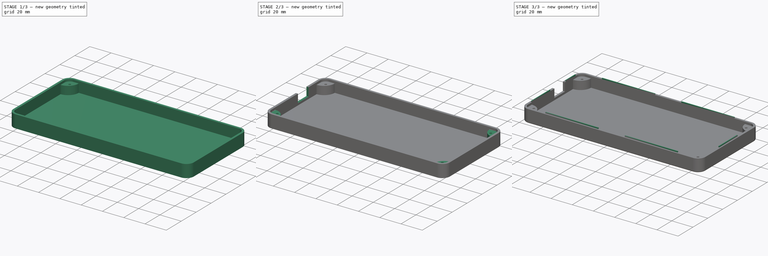
[diagram: build sequence overview — one tinted view per stage of 3, left to right]
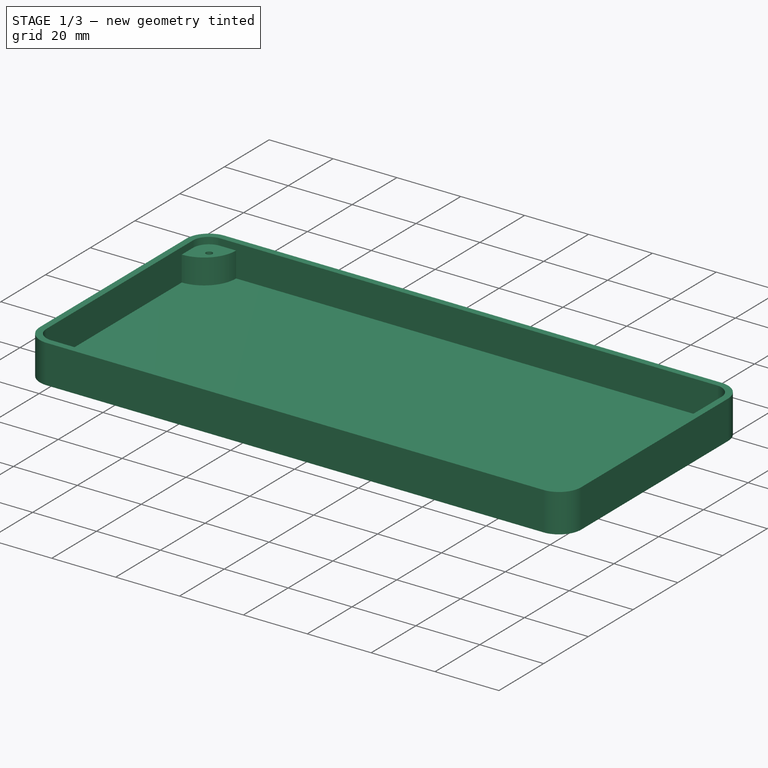
[diagram: stage 1 of 3 — iso view after this stage's code; geometry added in this stage tinted green]
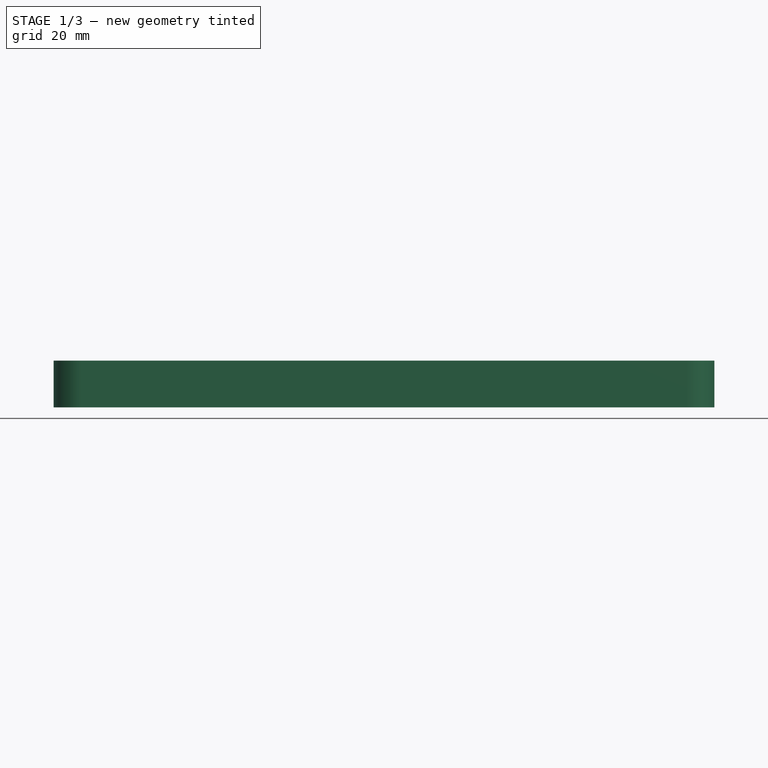
[diagram: stage 1 of 3 — front view after this stage's code; geometry added in this stage tinted green]
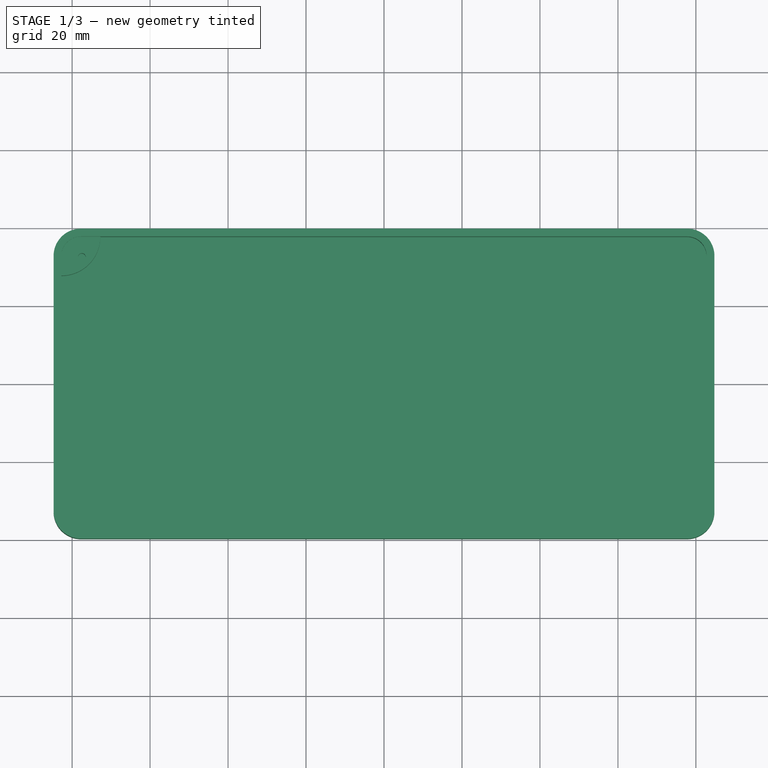
[diagram: stage 1 of 3 — top view after this stage's code; geometry added in this stage tinted green]
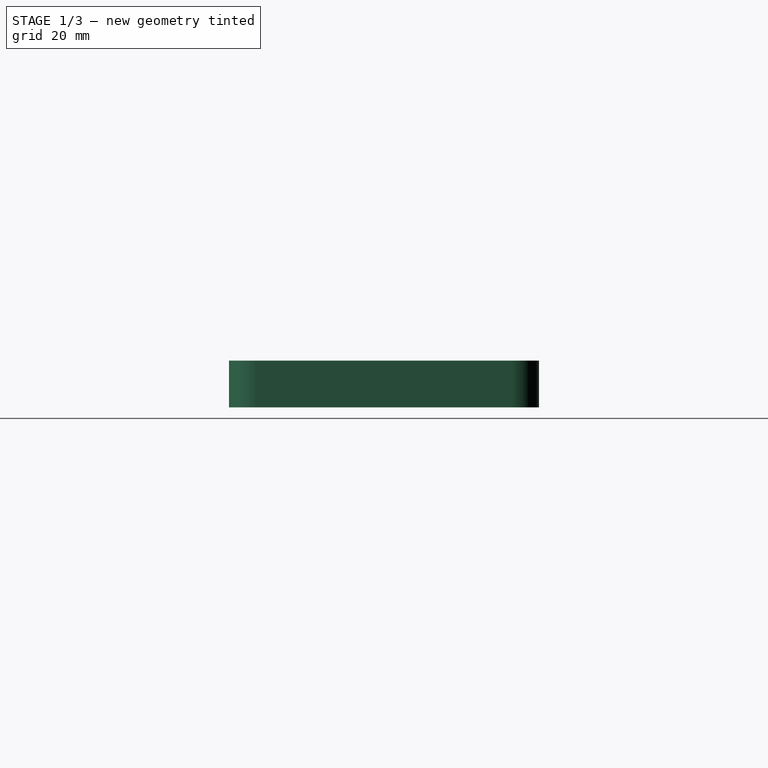
[diagram: stage 1 of 3 — right view after this stage's code; geometry added in this stage tinted green]
FCSTD DOCUMENT  (FreeCAD 0.21R33771 (Git))
Label: printable2
License: All rights reserved
LicenseURL: https://en.wikipedia.org/wiki/All_rights_reserved
objects: Sketcher::SketchObject×4, PartDesign::Pad×3, PartDesign::Mirrored×2, Part::FeaturePython×2, Part::Feature×2, Spreadsheet::Sheet×1, PartDesign::Thickness×1, PartDesign::MultiTransform×1, PartDesign::Pocket×1, Part::Mirroring×1, App::LinkGroup×1, PartDesign::Fillet×1, PartDesign::Body×1
note: 25 computed .brp shape members not serialized (recipe doc carries the construction recipe); baked Part::Feature solids carry a one-line shape summary decoded from their .brp

FEATURE [Spreadsheet::Sheet] Spreadsheet
  cells = A2='box_width; B2(box_width)==75 + B14; A3='box_length; B3(box_length)==165 + B14; A4='box_corner_radius; B4(box_corner_radius)=5; A5='box_height; B5(box_height)=10; A6='box_outter_thickness; B6(box_outter_thickness)=2; A7='lug_height; B7(lug_height)==B5 - B10 - B14; A8='lug_radius; B8(lug_radius)=10; A9='screw_thread_dia; B9(screw_thread_dia)=2; A10='board_height; B10(board_height)=1.6; A11='lug_vert_from_mid; B11(lug_vert_from_mid)==B2 / 2; A12='lug_hor_from_mid; B12(lug_hor_from_mid)==B3 / 2; A13='lug_to_screw_thread; B13(lug_to_screw_thread)==5 + B14 / 2; A14='board_to_case_offset; B14(board_to_case_offset)=0.5; A15='lug_width; B15(lug_width)=5; A16='logo_size; B16(logo_size)=50; A17='lid_latch_length_small; B17(lid_latch_length_small)=13; A18='lid_latch_width; B18(lid_latch_width)==B6 / 2 - B14 / 2; A19='lid_latch_length_mid; B19(lid_latch_length_mid)=25; A20='lid_latch_length_large; B20(lid_latch_length_large)=50; A21='lid_latch_pad; B21(lid_latch_pad)=1
FEATURE [Sketcher::SketchObject] Sketch
  FullyConstrained = true
  MapMode = 5
  Support = -> [XY_Plane001]
  expr: Constraints[20] = Spreadsheet.box_width
  expr: Constraints[21] = Spreadsheet.box_length
  sketch-geometry (10):
    g0: ArcOfCircle CenterX=-77.75 CenterY=32.75 CenterZ=0 NormalX=0 NormalY=0 NormalZ=1 AngleXU=0 Radius=5 StartAngle=1.5708 EndAngle=3.14159
    g1: LineSegment StartX=-77.75 StartY=37.75 StartZ=0 EndX=77.75 EndY=37.75 EndZ=0
    g2: ArcOfCircle CenterX=77.75 CenterY=32.75 CenterZ=0 NormalX=0 NormalY=0 NormalZ=1 AngleXU=0 Radius=5 StartAngle=-4.17e-14 EndAngle=1.5708
    g3: LineSegment StartX=82.75 StartY=32.75 StartZ=0 EndX=82.75 EndY=-32.75 EndZ=0
    g4: ArcOfCircle CenterX=77.75 CenterY=-32.75 CenterZ=0 NormalX=0 NormalY=0 NormalZ=1 AngleXU=0 Radius=5 StartAngle=4.71239 EndAngle=6.28319
    g5: LineSegment StartX=77.75 StartY=-37.75 StartZ=0 EndX=-77.75 EndY=-37.75 EndZ=0
    g6: ArcOfCircle CenterX=-77.75 CenterY=-32.75 CenterZ=0 NormalX=0 NormalY=0 NormalZ=1 AngleXU=0 Radius=5 StartAngle=3.14159 EndAngle=4.71239
    g7: LineSegment StartX=-82.75 StartY=-32.75 StartZ=0 EndX=-82.75 EndY=32.75 EndZ=0
    g8: GeomPoint X=-82.75 Y=37.75 Z=0
    g9: GeomPoint X=82.75 Y=-37.75 Z=0
  constraints (23):
    c: Tangent(g0,g1) = 1.5708
    c: Tangent(g1,g2) = 1.5708
    c: Tangent(g2,g3) = 1.5708
    c: Tangent(g3,g4) = 1.5708
    c: Tangent(g4,g5) = 1.5708
    c: Tangent(g5,g6) = 1.5708
    c: Tangent(g6,g7) = 1.5708
    c: Tangent(g7,g0) = 1.5708
    c: Horizontal(g1)
    c: Horizontal(g5)
    c: Vertical(g3)
    c: Vertical(g7)
    c: Equal(g0,g2)
    c: Equal(g2,g4)
    c: Equal(g4,g6)
    c: PointOnObject(g8,g1)
    c: PointOnObject(g8,g7)
    c: PointOnObject(g9,g3)
    c: PointOnObject(g9,g5)
    c: Symmetric(g0,g4,g-1)
    c: DistanceY(g5,g0) = 75.5
    c: DistanceX(g0,g2) = 165.5
    c: Radius(g0) = 5
FEATURE [PartDesign::Pad] Pad
  Direction = (0,0,1)
  Length = 10
  Length2 = 10
  Profile = -> Sketch
  ReferenceAxis = -> Sketch [N_Axis]
  Type = 0
  expr: Length = Spreadsheet.box_height
FEATURE [PartDesign::Thickness] Thickness
  Base = -> Pad [Face10]
  BaseFeature = -> Pad
  Intersection = false
  Join = 1
  Mode = 0
  SupportTransform = false
  Value = 2
  expr: Value = Spreadsheet.box_outter_thickness
FEATURE [Sketcher::SketchObject] Sketch001
  ExternalGeometry = -> [Thickness]
  FullyConstrained = true
  MapMode = 5
  Support = -> [Thickness]
  expr: Constraints[0] = Spreadsheet.screw_thread_dia
  expr: Constraints[11] = Spreadsheet.lug_radius
  expr: Constraints[14] = Spreadsheet.box_corner_radius
  expr: Constraints[1] = Spreadsheet.lug_to_screw_thread
  expr: Constraints[2] = Spreadsheet.lug_to_screw_thread
  expr: Constraints[7] = Spreadsheet.lug_width
  expr: Constraints[8] = Spreadsheet.lug_width
  sketch-geometry (5):
    g0: Circle CenterX=-77.5 CenterY=32.5 CenterZ=0 NormalX=0 NormalY=0 NormalZ=1 AngleXU=0 Radius=1
    g1: LineSegment StartX=-77.75 StartY=37.75 StartZ=0 EndX=-72.75 EndY=37.75 EndZ=0
    g2: LineSegment StartX=-82.75 StartY=32.75 StartZ=0 EndX=-82.75 EndY=27.75 EndZ=0
    g3: ArcOfCircle CenterX=-82.75 CenterY=37.75 CenterZ=0 NormalX=0 NormalY=0 NormalZ=1 AngleXU=0 Radius=10 StartAngle=4.71239 EndAngle=6.28319
    g4: ArcOfCircle CenterX=-77.75 CenterY=32.75 CenterZ=0 NormalX=0 NormalY=0 NormalZ=1 AngleXU=0 Radius=5 StartAngle=1.5708 EndAngle=3.14159
  constraints (15):
    c: Diameter(g0) = 2
    c: DistanceY(g0,g-3) = 5.25
    c: DistanceX(g-4,g0) = 5.25
    c: Coincident(g1,g-3)
    c: Horizontal(g1)
    c: Coincident(g2,g-4)
    c: PointOnObject(g2,g-4)
    c: DistanceX(g1,g1) = 5
    c: DistanceY(g2,g2) = 5
    c: Coincident(g3,g1)
    c: Coincident(g3,g2)
    c: Radius(g3) = 10
    c: Coincident(g4,g2)
    c: Coincident(g4,g1)
    c: Radius(g4) = 5
FEATURE [PartDesign::Pad] Pad001
  BaseFeature = -> Thickness
  Direction = (0,0,1)
  Length = 7.9
  Length2 = 10
  Profile = -> Sketch001
  ReferenceAxis = -> Sketch001 [N_Axis]
  Type = 0
  expr: Length = Spreadsheet.lug_height
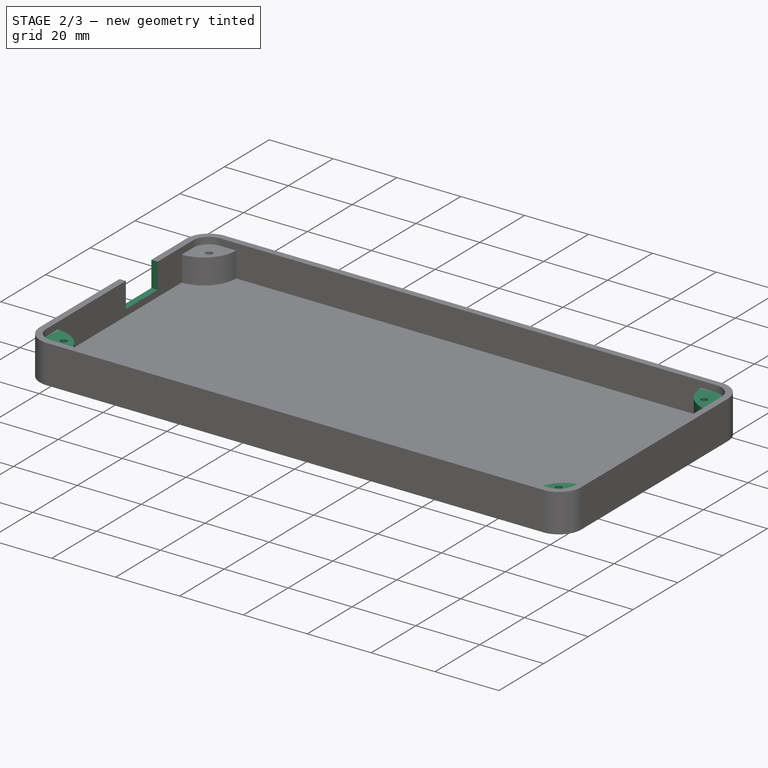
[diagram: stage 2 of 3 — iso view after this stage's code; geometry added in this stage tinted green]
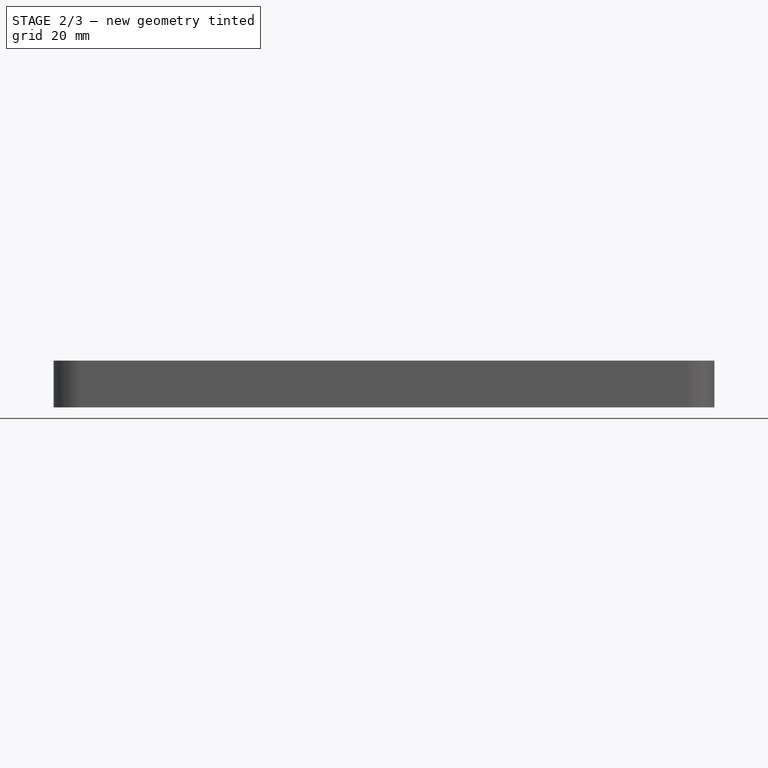
[diagram: stage 2 of 3 — front view after this stage's code; geometry added in this stage tinted green]
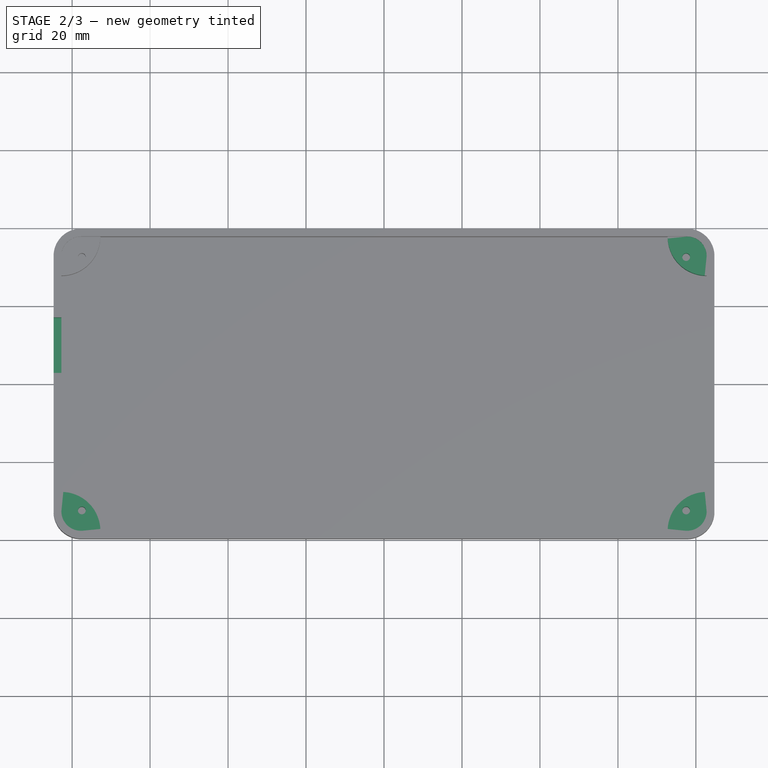
[diagram: stage 2 of 3 — top view after this stage's code; geometry added in this stage tinted green]
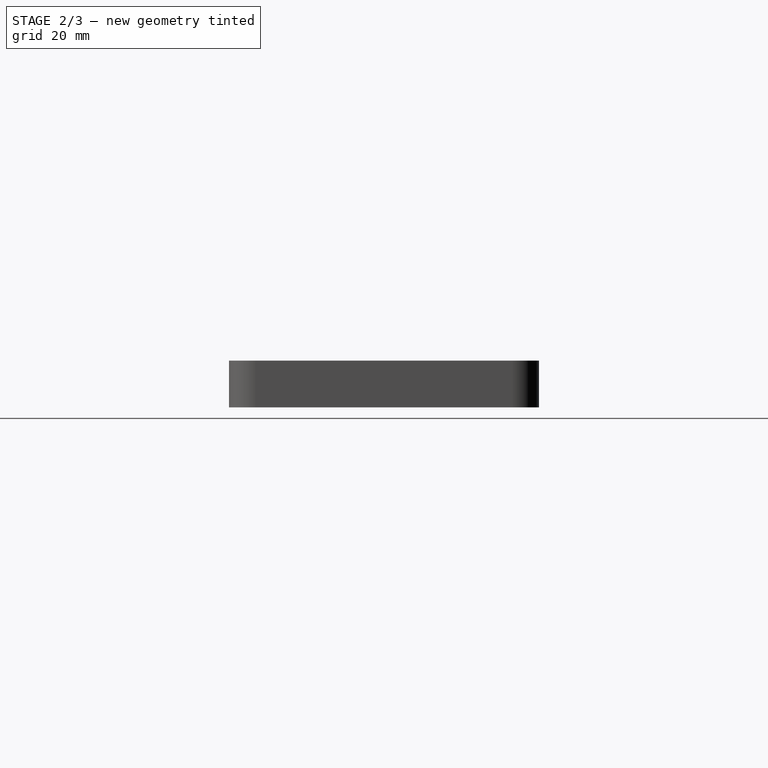
[diagram: stage 2 of 3 — right view after this stage's code; geometry added in this stage tinted green]
FEATURE [PartDesign::Mirrored] Mirrored
  MirrorPlane = -> Sketch001 [V_Axis]
FEATURE [PartDesign::Mirrored] Mirrored001
  MirrorPlane = -> Sketch001 [H_Axis]
FEATURE [PartDesign::MultiTransform] MultiTransform
  BaseFeature = -> Pad001
  Originals = -> [Pad001]
  Transformations = -> [Mirrored,Mirrored001]
FEATURE [Sketcher::SketchObject] Sketch003
  ExternalGeometry = -> [MultiTransform]
  FullyConstrained = true
  MapMode = 5
  Placement = pos=(-84.75,0,0) rot=(0.57735,-0.57735,-0.57735;2.0944rad)
  Support = -> [MultiTransform]
  sketch-geometry (4):
    g0: LineSegment StartX=-17 StartY=10 StartZ=0 EndX=-2.75 EndY=10 EndZ=0
    g1: LineSegment StartX=-2.75 StartY=10 StartZ=0 EndX=-2.75 EndY=2 EndZ=0
    g2: LineSegment StartX=-2.75 StartY=2 StartZ=0 EndX=-17 EndY=2 EndZ=0
    g3: LineSegment StartX=-17 StartY=2 StartZ=0 EndX=-17 EndY=10 EndZ=0
  constraints (12):
    c: Coincident(g0,g1)
    c: Coincident(g1,g2)
    c: Coincident(g2,g3)
    c: Coincident(g3,g0)
    c: Horizontal(g0)
    c: Horizontal(g2)
    c: Vertical(g1)
    c: Vertical(g3)
    c: PointOnObject(g0,g-3)
    c: DistanceY(g3,g3) = 8
    c: DistanceX(g0,g0) = 14.25
    c: DistanceX(g-4,g0) = 20.75
FEATURE [PartDesign::Pocket] Pocket
  BaseFeature = -> MultiTransform
  Direction = (1,0,0)
  Length = 5
  Length2 = 5
  Profile = -> Sketch003
  ReferenceAxis = -> Sketch003 [N_Axis]
  Type = 0
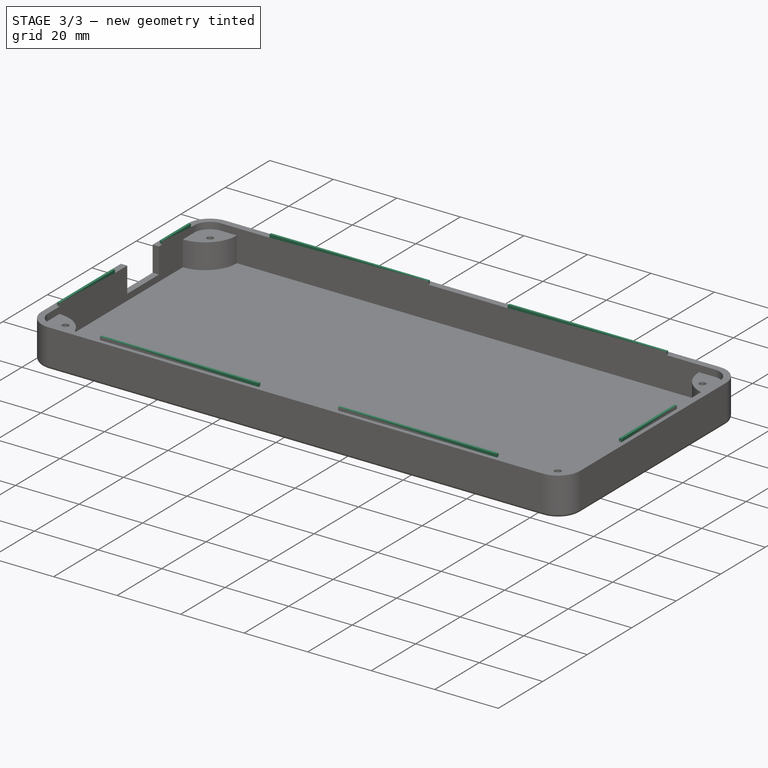
[diagram: stage 3 of 3 — iso view after this stage's code; geometry added in this stage tinted green]
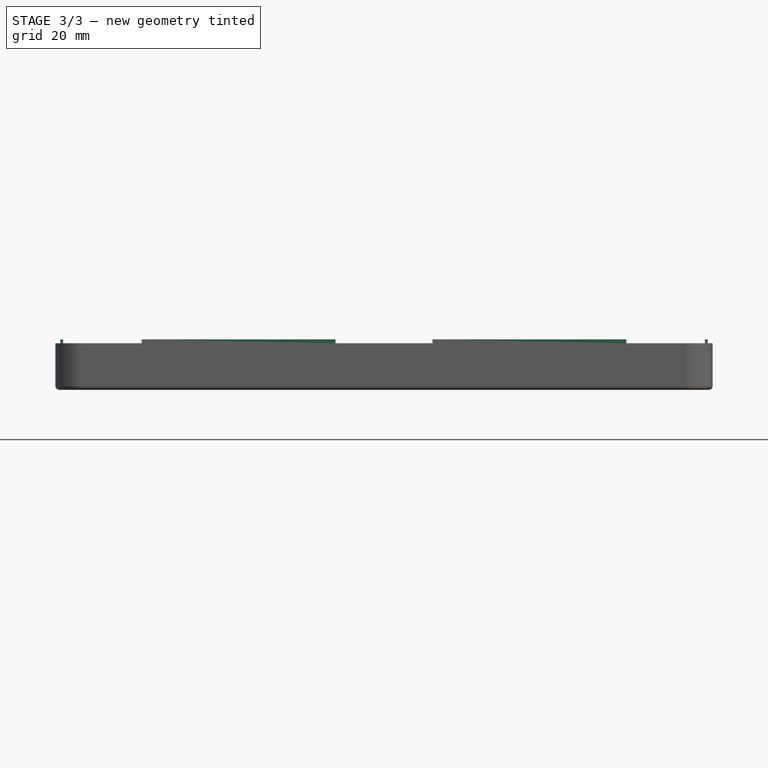
[diagram: stage 3 of 3 — front view after this stage's code; geometry added in this stage tinted green]
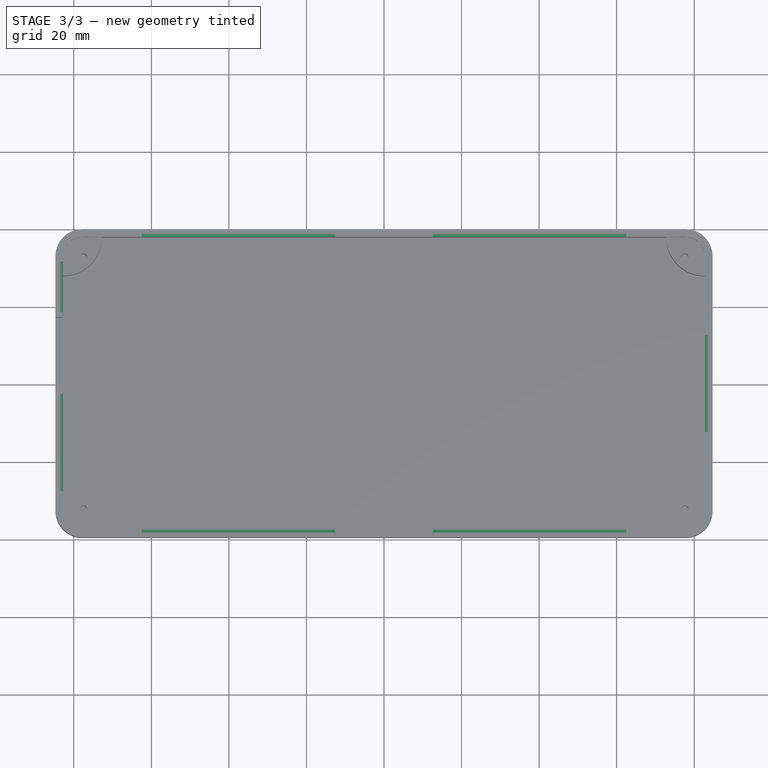
[diagram: stage 3 of 3 — top view after this stage's code; geometry added in this stage tinted green]
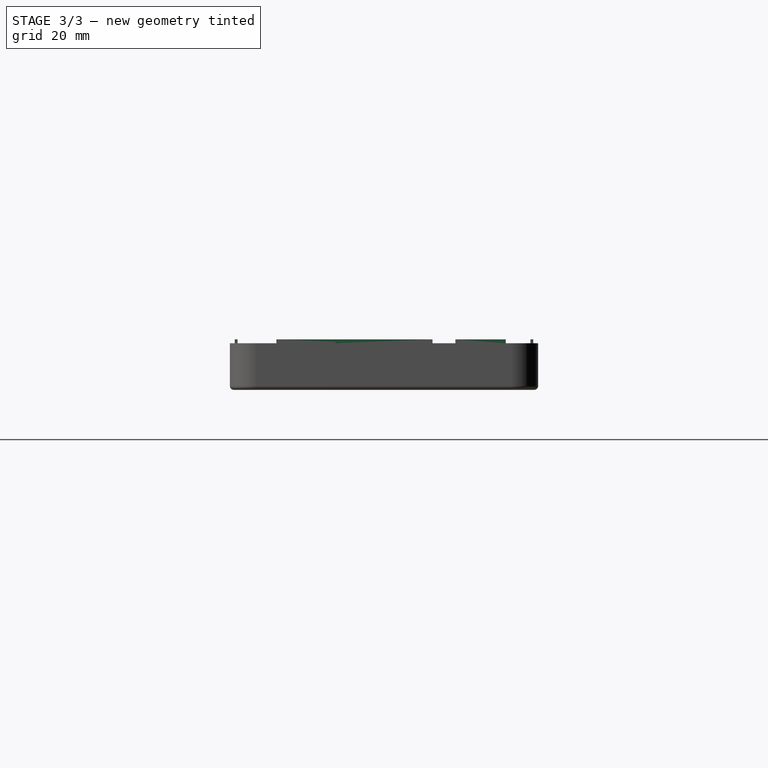
[diagram: stage 3 of 3 — right view after this stage's code; geometry added in this stage tinted green]
FEATURE [Part::FeaturePython] Tube  # WARN: FeaturePython — macro-defined, semantics opaque (R4)
  AttacherType = Attacher::AttachEngine3D
  Height = 0.001
  InnerRadius = 12.5
  OuterRadius = 13.5
  Placement = pos=(0,0,-12) rot=(0,0,1;0rad)
FEATURE [Part::Feature] path21_008  label="path21_009"
  shape: bbox 89.15 x 90.07 x 2e-07 mm, 1 faces, 0 solids (baked)
FEATURE [Part::FeaturePython] Clone  label="path21_010"  # Draft clone (typed FeaturePython)
  AttacherType = Attacher::AttachEngine3D
  Fuse = false
  Objects = -> [path21_008]
  Placement = pos=(-78.0602,23.9596,-12) rot=(0,0,1;0rad)
  Scale = (0.25,0.25,0.25)
FEATURE [Part::Mirroring] Mirror  label="path21_010 (mirrored)"
  Base = (-46.6259,6.38291,0)
  Normal = (0.161242,0.986915,0)
  Placement = pos=(-42.4965,-9.61758,0) rot=(0,0,1;3.46721rad)
  Source = -> Clone
FEATURE [App::LinkGroup] LinkGroup
  ElementList = -> [Tube,Mirror]
  LinkMode = 0
FEATURE [Part::Feature] Projection_Object  label="Projection Object"
  Placement = pos=(0,0,0.25) rot=(0,0,1;0rad)
  shape: bbox 27.02 x 27.02 x 2.021 mm, 116 faces, 2 solids (baked)
FEATURE [PartDesign::Fillet] Fillet
  Base = -> Pocket [Edge65,Edge67,Edge69,Edge71,Edge73,Edge75,Edge60,Edge63]
  BaseFeature = -> Pocket
  Radius = 1
  SupportTransform = false
  UseAllEdges = false
FEATURE [Sketcher::SketchObject] Sketch004
  ExternalGeometry = -> [Fillet]
  FullyConstrained = true
  MapMode = 5
  Placement = pos=(0,0,10) rot=(0,0,1;0rad)
  Support = -> [Fillet]
  expr: Constraints[63] = Spreadsheet.lid_latch_width
  expr: Constraints[64] = Spreadsheet.lid_latch_length_small
  expr: Constraints[67] = Spreadsheet.lid_latch_length_mid
  expr: Constraints[73] = Spreadsheet.lid_latch_length_large
  expr: Constraints[80] = Spreadsheet.lid_latch_length_mid / 2
  sketch-geometry (28):
    g0: LineSegment StartX=-62.5 StartY=37.75 StartZ=0 EndX=-12.5 EndY=37.75 EndZ=0
    g1: LineSegment StartX=-12.5 StartY=37.75 StartZ=0 EndX=-12.5 EndY=38.5 EndZ=0
    g2: LineSegment StartX=-12.5 StartY=38.5 StartZ=0 EndX=-62.5 EndY=38.5 EndZ=0
    g3: LineSegment StartX=-62.5 StartY=38.5 StartZ=0 EndX=-62.5 EndY=37.75 EndZ=0
    g4: LineSegment StartX=12.5 StartY=37.75 StartZ=0 EndX=62.5 EndY=37.75 EndZ=0
    g5: LineSegment StartX=62.5 StartY=37.75 StartZ=0 EndX=62.5 EndY=38.5 EndZ=0
    g6: LineSegment StartX=62.5 StartY=38.5 StartZ=0 EndX=12.5 EndY=38.5 EndZ=0
    g7: LineSegment StartX=12.5 StartY=38.5 StartZ=0 EndX=12.5 EndY=37.75 EndZ=0
    g8: LineSegment StartX=82.75 StartY=12.5 StartZ=0 EndX=83.5 EndY=12.5 EndZ=0
    g9: LineSegment StartX=83.5 StartY=12.5 StartZ=0 EndX=83.5 EndY=-12.5 EndZ=0
    g10: LineSegment StartX=83.5 StartY=-12.5 StartZ=0 EndX=82.75 EndY=-12.5 EndZ=0
    g11: LineSegment StartX=82.75 StartY=-12.5 StartZ=0 EndX=82.75 EndY=12.5 EndZ=0
    g12: LineSegment StartX=-62.5 StartY=-37.75 StartZ=0 EndX=-12.5 EndY=-37.75 EndZ=0
    g13: LineSegment StartX=-12.5 StartY=-37.75 StartZ=0 EndX=-12.5 EndY=-38.5 EndZ=0
    g14: LineSegment StartX=-12.5 StartY=-38.5 StartZ=0 EndX=-62.5 EndY=-38.5 EndZ=0
    g15: LineSegment StartX=-62.5 StartY=-38.5 StartZ=0 EndX=-62.5 EndY=-37.75 EndZ=0
    g16: LineSegment StartX=12.5 StartY=-37.75 StartZ=0 EndX=62.5 EndY=-37.75 EndZ=0
    g17: LineSegment StartX=62.5 StartY=-37.75 StartZ=0 EndX=62.5 EndY=-38.5 EndZ=0
    g18: LineSegment StartX=62.5 StartY=-38.5 StartZ=0 EndX=12.5 EndY=-38.5 EndZ=0
    g19: LineSegment StartX=12.5 StartY=-38.5 StartZ=0 EndX=12.5 EndY=-37.75 EndZ=0
    g20: LineSegment StartX=-82.75 StartY=-2.75 StartZ=0 EndX=-83.5 EndY=-2.75 EndZ=0
    g21: LineSegment StartX=-83.5 StartY=-2.75 StartZ=0 EndX=-83.5 EndY=-27.75 EndZ=0
    g22: LineSegment StartX=-83.5 StartY=-27.75 StartZ=0 EndX=-82.75 EndY=-27.75 EndZ=0
    g23: LineSegment StartX=-82.75 StartY=-27.75 StartZ=0 EndX=-82.75 EndY=-2.75 EndZ=0
    g24: LineSegment StartX=-82.75 StartY=31.4 StartZ=0 EndX=-83.5 EndY=31.4 EndZ=0
    g25: LineSegment StartX=-83.5 StartY=31.4 StartZ=0 EndX=-83.5 EndY=18.4 EndZ=0
    g26: LineSegment StartX=-83.5 StartY=18.4 StartZ=0 EndX=-82.75 EndY=18.4 EndZ=0
    g27: LineSegment StartX=-82.75 StartY=18.4 StartZ=0 EndX=-82.75 EndY=31.4 EndZ=0
  constraints (84):
    c: Coincident(g0,g1)
    c: Coincident(g1,g2)
    c: Coincident(g2,g3)
    c: Coincident(g3,g0)
    c: Horizontal(g0)
    c: Horizontal(g2)
    c: Vertical(g1)
    c: Vertical(g3)
    c: PointOnObject(g0,g-4)
    c: Coincident(g4,g5)
    c: Coincident(g5,g6)
    c: Coincident(g6,g7)
    c: Coincident(g7,g4)
    c: Horizontal(g4)
    c: Horizontal(g6)
    c: Vertical(g5)
    c: Vertical(g7)
    c: PointOnObject(g4,g-4)
    c: Coincident(g8,g9)
    c: Coincident(g9,g10)
    c: Coincident(g10,g11)
    c: Coincident(g11,g8)
    c: Horizontal(g8)
    c: Horizontal(g10)
    c: Vertical(g9)
    c: Vertical(g11)
    c: PointOnObject(g8,g-7)
    c: Coincident(g12,g13)
    c: Coincident(g13,g14)
    c: Coincident(g14,g15)
    c: Coincident(g15,g12)
    c: Horizontal(g12)
    c: Horizontal(g14)
    c: Vertical(g13)
    c: Vertical(g15)
    c: PointOnObject(g12,g-6)
    c: Coincident(g16,g17)
    c: Coincident(g17,g18)
    c: Coincident(g18,g19)
    c: Coincident(g19,g16)
    c: Horizontal(g16)
    c: Horizontal(g18)
    c: Vertical(g17)
    c: Vertical(g19)
    c: PointOnObject(g16,g-6)
    c: Coincident(g20,g21)
    c: Coincident(g21,g22)
    c: Coincident(g22,g23)
    c: Coincident(g23,g20)
    c: Horizontal(g20)
    c: Horizontal(g22)
    c: Vertical(g21)
    c: Vertical(g23)
    c: PointOnObject(g20,g-5)
    c: Coincident(g24,g25)
    c: Coincident(g25,g26)
    c: Coincident(g26,g27)
    c: Coincident(g27,g24)
    c: Horizontal(g24)
    c: Horizontal(g26)
    c: Vertical(g25)
    c: Vertical(g27)
    c: PointOnObject(g24,g-3)
    c: DistanceX(g24,g24) = 0.75
    c: DistanceY(g25,g25) = 13
    c: Equal(g26,g20)
    c: DistanceY(g24,g-3) = 1.35
    c: DistanceY(g23,g23) = 25
    c: Equal(g24,g3)
    c: Equal(g1,g7)
    c: Equal(g5,g8)
    c: Equal(g10,g17)
    c: Equal(g19,g13)
    c: DistanceX(g2,g2) = 50
    c: Equal(g2,g6)
    c: Equal(g6,g16)
    c: Equal(g16,g12)
    c: Equal(g23,g11)
    c: DistanceX(g0,g-1) = 12.5
    c: DistanceX(g-1,g4) = 12.5
    c: DistanceY(g-1,g8) = 12.5
    c: DistanceX(g-1,g16) = 12.5
    c: DistanceX(g12,g-1) = 12.5
    c: DistanceY(g20,g-5) = 5.5
FEATURE [PartDesign::Pad] Pad002
  BaseFeature = -> Fillet
  Direction = (0,0,1)
  Length = 1
  Length2 = 10
  Profile = -> Sketch004
  ReferenceAxis = -> Sketch004 [N_Axis]
  Type = 0
  expr: Length = Spreadsheet.lid_latch_pad
FEATURE [PartDesign::Body] Body001
  Group = -> [Sketch,Pad,Thickness,Sketch001,Pad001,MultiTransform,Mirrored,Mirrored001,Sketch003,Pocket,Fillet,Sketch004,Pad002]
  Origin = -> Origin001
  Tip = -> Pad002
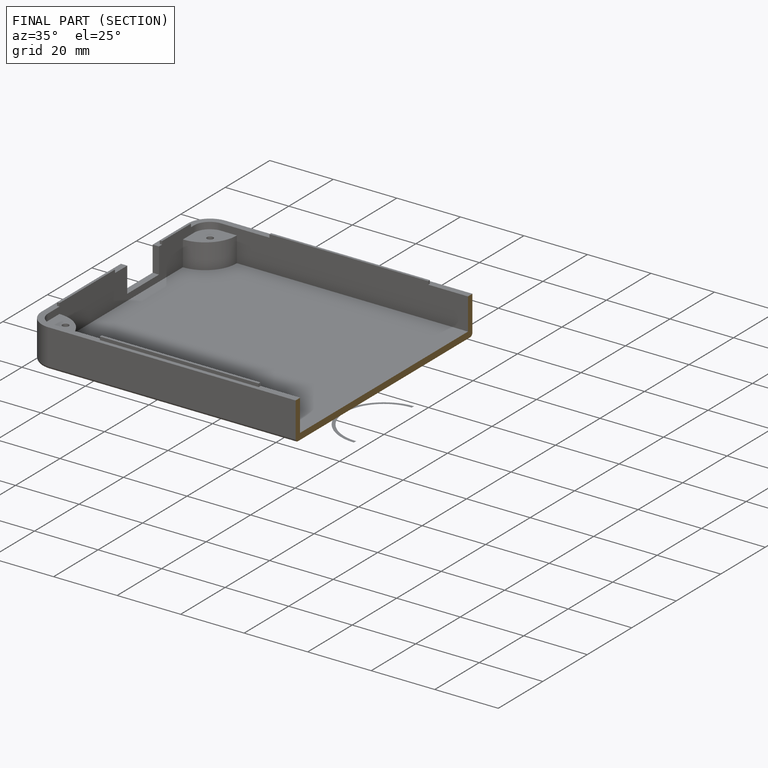
[diagram: finished part — half-section view (interior)]
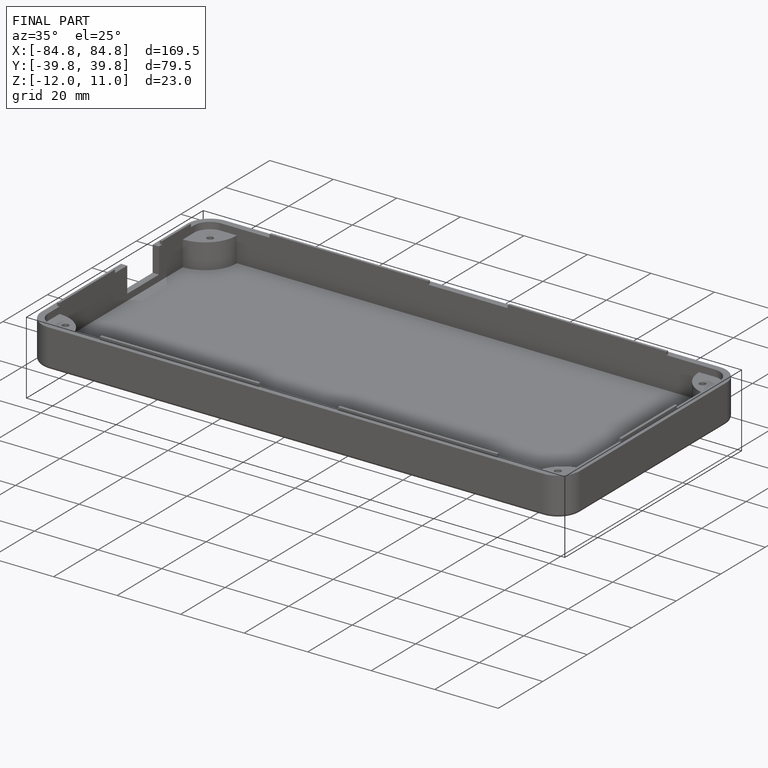
[diagram: finished part — iso view with bounding-box wireframe]
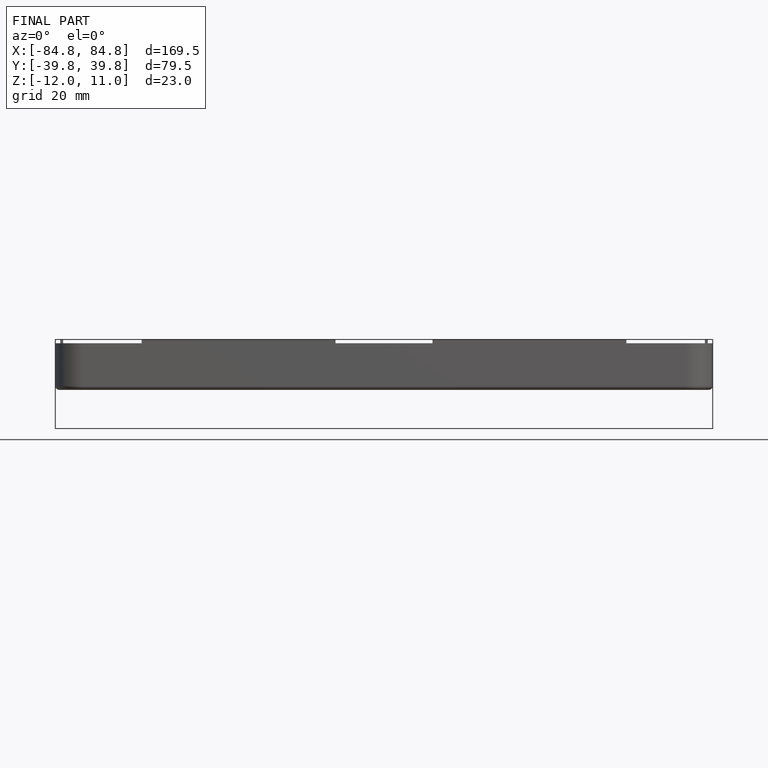
[diagram: finished part — front view with bounding-box wireframe]
